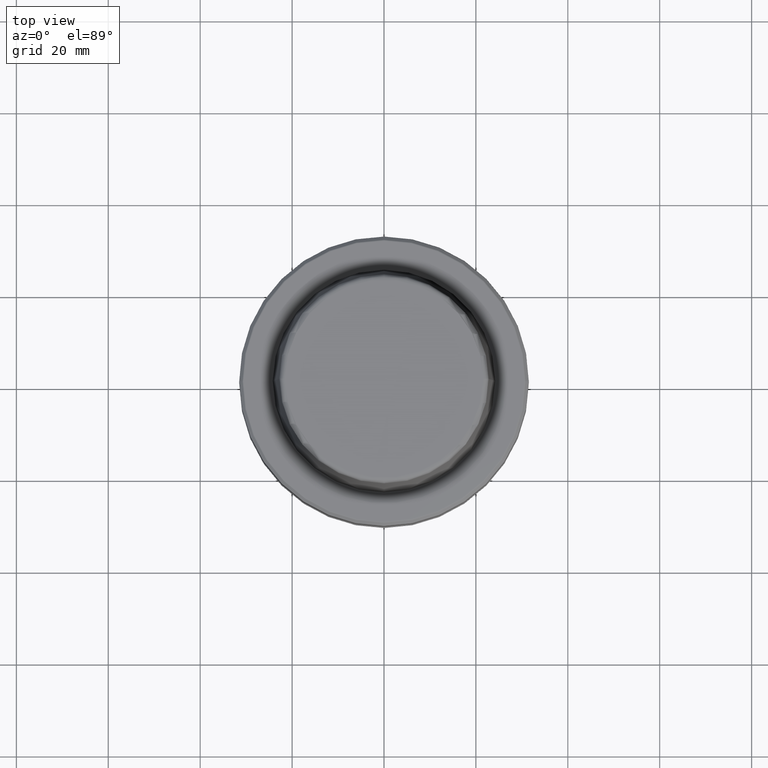
[diagram: clean part render]
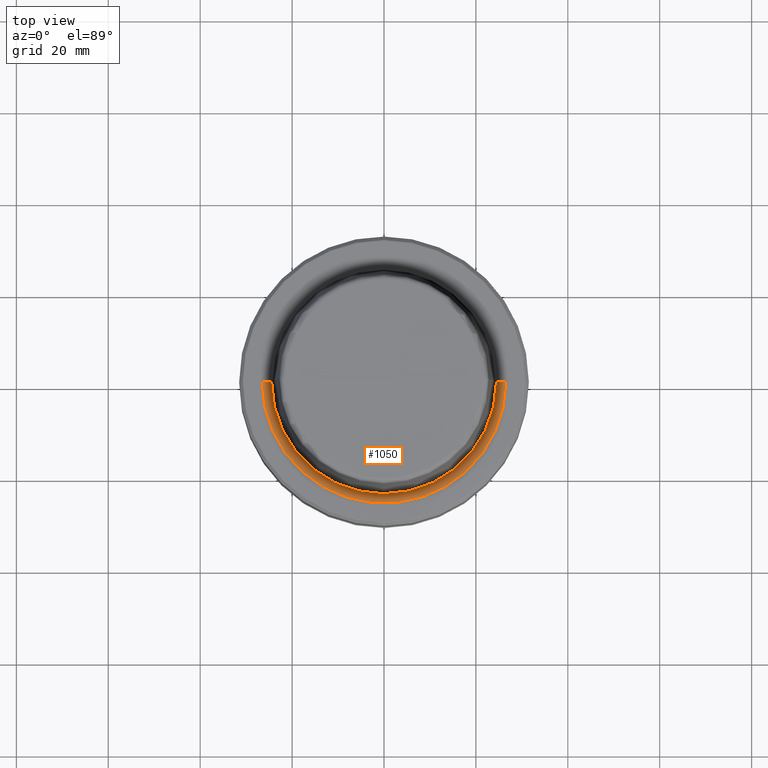
[diagram: same view with one face highlighted and labeled with its STEP entity id]
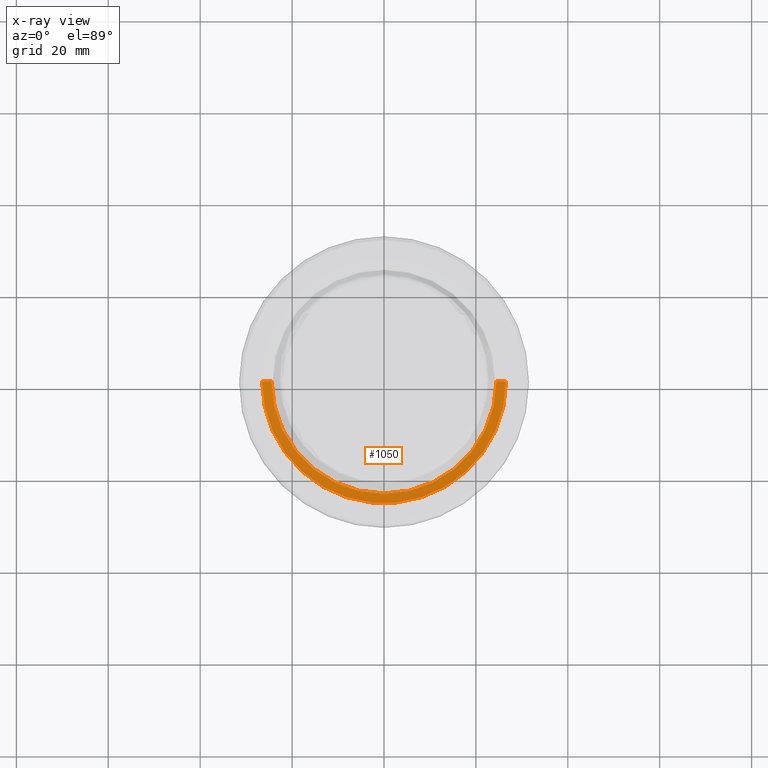
[diagram: x-ray of the same camera — body ghosted, the highlighted face saturated]
A machine part, top view. The second image highlights one B-rep face of the part: STEP entity #1050.
The next image is the same camera in x-ray: the body ghosted, the highlighted face saturated — about 0% of this face is hidden behind the body in this view.
In plain terms, the highlighted conical surface has half-angle 80 deg.
Its self-contained STEP definition (entity closure, byte-faithful):
#22 = VERTEX_POINT ( 'NONE', #173 ) ;
#32 = LINE ( 'NONE', #542, #548 ) ;
#173 = CARTESIAN_POINT ( 'NONE',  ( -26.52499999999999900, 3.248375634738354300E-015, 0.0000000000000000000 ) ) ;
#184 = CARTESIAN_POINT ( 'NONE',  ( -24.47682408883346700, 3.122961031053313900E-015, -0.3611486743758107700 ) ) ;
#203 = CARTESIAN_POINT ( 'NONE',  ( 0.0000000000000000000, 0.0000000000000000000, -0.3611486743758107700 ) ) ;
#270 = AXIS2_PLACEMENT_3D ( 'NONE', #301, #995, #403 ) ;
#301 = CARTESIAN_POINT ( 'NONE',  ( 0.0000000000000000000, 0.0000000000000000000, 0.0000000000000000000 ) ) ;
#302 = DIRECTION ( 'NONE',  ( 1.000000000000000000, 0.0000000000000000000, 0.0000000000000000000 ) ) ;
#361 = CARTESIAN_POINT ( 'NONE',  ( 26.52499999999999900, 0.0000000000000000000, 0.0000000000000000000 ) ) ;
#391 = CIRCLE ( 'NONE', #1227, 24.47682408883346700 ) ;
#403 = DIRECTION ( 'NONE',  ( 1.000000000000000000, 0.0000000000000000000, 0.0000000000000000000 ) ) ;
#452 = LINE ( 'NONE', #361, #978 ) ;
#472 = EDGE_CURVE ( 'NONE', #1107, #762, #452, .T. ) ;
#481 = CARTESIAN_POINT ( 'NONE',  ( 26.52499999999999900, 0.0000000000000000000, 0.0000000000000000000 ) ) ;
#505 = EDGE_LOOP ( 'NONE', ( #1171, #1192, #961, #565 ) ) ;
#542 = CARTESIAN_POINT ( 'NONE',  ( -26.52499999999999900, 3.248375634738354300E-015, 0.0000000000000000000 ) ) ;
#548 = VECTOR ( 'NONE', #1136, 1000.000000000000200 ) ;
#565 = ORIENTED_EDGE ( 'NONE', *, *, #472, .F. ) ;
#597 = CONICAL_SURFACE ( 'NONE', #740, 26.52499999999999900, 1.396263401595460500 ) ;
#650 = DIRECTION ( 'NONE',  ( 0.9848077530122074700, 0.0000000000000000000, 0.1736481776669334700 ) ) ;
#715 = CARTESIAN_POINT ( 'NONE',  ( 0.0000000000000000000, 0.0000000000000000000, 0.0000000000000000000 ) ) ;
#740 = AXIS2_PLACEMENT_3D ( 'NONE', #715, #915, #1210 ) ;
#762 = VERTEX_POINT ( 'NONE', #481 ) ;
#778 = EDGE_CURVE ( 'NONE', #856, #1107, #391, .T. ) ;
#856 = VERTEX_POINT ( 'NONE', #184 ) ;
#896 = DIRECTION ( 'NONE',  ( -0.0000000000000000000, -0.0000000000000000000, 1.000000000000000000 ) ) ;
#915 = DIRECTION ( 'NONE',  ( -0.0000000000000000000, -0.0000000000000000000, 1.000000000000000000 ) ) ;
#935 = EDGE_CURVE ( 'NONE', #22, #762, #1049, .T. ) ;
#961 = ORIENTED_EDGE ( 'NONE', *, *, #935, .T. ) ;
#978 = VECTOR ( 'NONE', #650, 1000.000000000000200 ) ;
#995 = DIRECTION ( 'NONE',  ( -0.0000000000000000000, -0.0000000000000000000, 1.000000000000000000 ) ) ;
#1049 = CIRCLE ( 'NONE', #270, 26.52499999999999900 ) ;
#1050 = ADVANCED_FACE ( 'NONE', ( #1158 ), #597, .F. ) ;
#1107 = VERTEX_POINT ( 'NONE', #1112 ) ;
#1112 = CARTESIAN_POINT ( 'NONE',  ( 24.47682408883346700, 0.0000000000000000000, -0.3611486743758107700 ) ) ;
#1136 = DIRECTION ( 'NONE',  ( -0.9848077530122074700, 1.206041662501897100E-016, 0.1736481776669334700 ) ) ;
#1158 = FACE_OUTER_BOUND ( 'NONE', #505, .T. ) ;
#1171 = ORIENTED_EDGE ( 'NONE', *, *, #778, .F. ) ;
#1192 = ORIENTED_EDGE ( 'NONE', *, *, #1197, .T. ) ;
#1197 = EDGE_CURVE ( 'NONE', #856, #22, #32, .T. ) ;
#1210 = DIRECTION ( 'NONE',  ( 1.000000000000000000, 0.0000000000000000000, 0.0000000000000000000 ) ) ;
#1227 = AXIS2_PLACEMENT_3D ( 'NONE', #203, #896, #302 ) ;